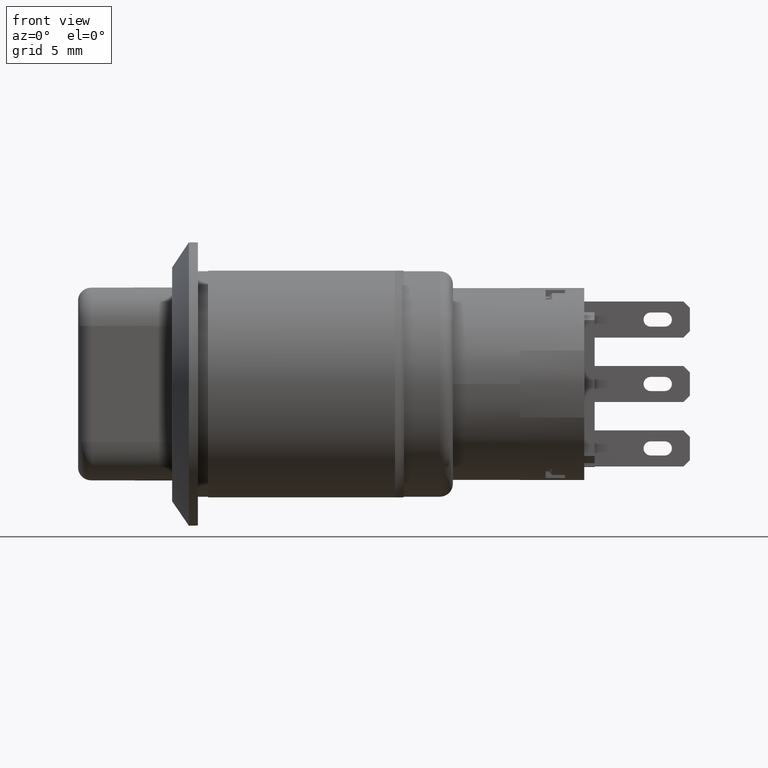
[diagram: clean part render]
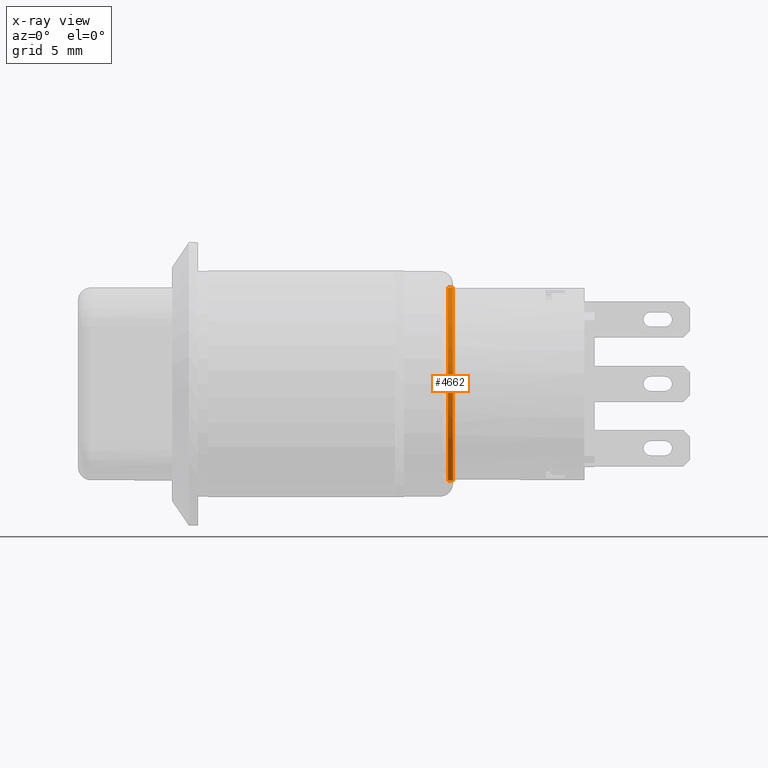
[diagram: x-ray — body ghosted, one internal face saturated and labeled with its STEP entity id]
A machine part, front view, then the same camera in x-ray: the body is ghosted and one INTERNAL B-rep face — a face not visible from any outside direction — is saturated and labeled: STEP entity #4662.
In plain terms, the highlighted cylindrical surface (bore or boss wall) has radius 7.5 mm, axis along (-1, 0, 0).
Its self-contained STEP definition (entity closure, byte-faithful):
#106=CYLINDRICAL_SURFACE('',#4989,0.295275590551181);
#170=CIRCLE('',#4959,0.295275590551181);
#189=CIRCLE('',#4988,0.295275590551181);
#413=FACE_OUTER_BOUND('',#677,.T.);
#677=EDGE_LOOP('',(#3203,#3204,#3205,#3206));
#955=LINE('',#6869,#1425);
#1425=VECTOR('',#5503,0.295275590551181);
#1902=VERTEX_POINT('',#6802);
#1923=VERTEX_POINT('',#6866);
#2390=EDGE_CURVE('',#1902,#1902,#170,.T.);
#2419=EDGE_CURVE('',#1923,#1923,#189,.T.);
#2420=EDGE_CURVE('',#1923,#1902,#955,.T.);
#3203=ORIENTED_EDGE('',*,*,#2419,.F.);
#3204=ORIENTED_EDGE('',*,*,#2420,.T.);
#3205=ORIENTED_EDGE('',*,*,#2390,.F.);
#3206=ORIENTED_EDGE('',*,*,#2420,.F.);
#4662=ADVANCED_FACE('',(#413),#106,.F.);
#4959=AXIS2_PLACEMENT_3D('',#6803,#5433,#5434);
#4988=AXIS2_PLACEMENT_3D('',#6867,#5499,#5500);
#4989=AXIS2_PLACEMENT_3D('',#6868,#5501,#5502);
#5433=DIRECTION('center_axis',(1.,0.,0.));
#5434=DIRECTION('ref_axis',(0.,0.,1.));
#5499=DIRECTION('center_axis',(-1.,0.,0.));
#5500=DIRECTION('ref_axis',(0.,0.,1.));
#5501=DIRECTION('center_axis',(-1.,0.,0.));
#5502=DIRECTION('ref_axis',(0.,0.,1.));
#5503=DIRECTION('',(-1.,0.,0.));
#6802=CARTESIAN_POINT('',(0.763779527559055,3.61608306834848E-17,-0.29527538601041));
#6803=CARTESIAN_POINT('Origin',(0.763779527559055,0.,2.04540771493841E-7));
#6866=CARTESIAN_POINT('',(0.779527559055118,3.61608306834848E-17,-0.29527538601041));
#6867=CARTESIAN_POINT('Origin',(0.779527559055118,0.,2.04540771493841E-7));
#6868=CARTESIAN_POINT('Origin',(0.779527559055118,0.,2.04540771493841E-7));
#6869=CARTESIAN_POINT('',(0.779527559055118,-3.61608306834848E-17,-0.29527538601041));